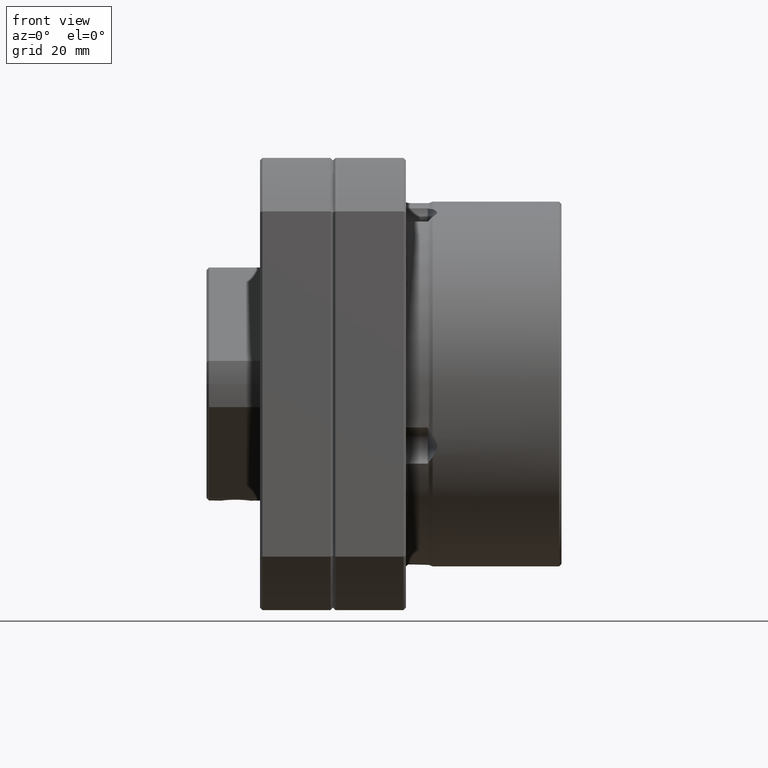
[diagram: clean part render]
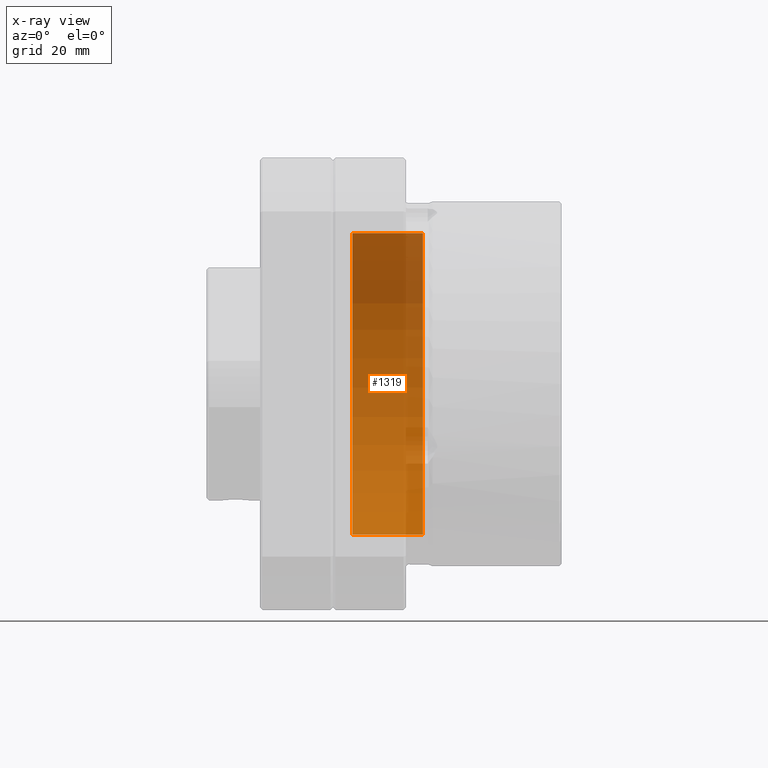
[diagram: x-ray — body ghosted, one internal face saturated and labeled with its STEP entity id]
A machine part, front view, then the same camera in x-ray: the body is ghosted and one INTERNAL B-rep face — a face not visible from any outside direction — is saturated and labeled: STEP entity #1319.
In plain terms, the highlighted cylindrical surface (partial cylindrical patch) has radius 31 mm, axis along (-1, 0, 0).
Its self-contained STEP definition (entity closure, byte-faithful):
#868 = ORIENTED_EDGE ( 'NONE', *, *, #1380, .F. ) ;
#1319 = ADVANCED_FACE ( 'NONE', ( #8444 ), #8443, .T. ) ;
#1320 = EDGE_LOOP ( 'NONE', ( #1321, #1325, #868, #1382 ) ) ;
#1321 = ORIENTED_EDGE ( 'NONE', *, *, #1322, .T. ) ;
#1322 = EDGE_CURVE ( 'NONE', #1323, #1324, #8438, .T. ) ;
#1323 = VERTEX_POINT ( 'NONE', #8433 ) ;
#1324 = VERTEX_POINT ( 'NONE', #8432 ) ;
#1325 = ORIENTED_EDGE ( 'NONE', *, *, #1326, .T. ) ;
#1326 = EDGE_CURVE ( 'NONE', #1324, #1327, #8431, .T. ) ;
#1327 = VERTEX_POINT ( 'NONE', #8427 ) ;
#1380 = EDGE_CURVE ( 'NONE', #1381, #1327, #8570, .T. ) ;
#1381 = VERTEX_POINT ( 'NONE', #8565 ) ;
#1382 = ORIENTED_EDGE ( 'NONE', *, *, #1383, .F. ) ;
#1383 = EDGE_CURVE ( 'NONE', #1323, #1381, #8564, .T. ) ;
#8427 = CARTESIAN_POINT ( 'NONE',  ( 3.999999999999989800, -0.7531374141748713400, -30.99085000504777600 ) ) ;
#8428 = DIRECTION ( 'NONE',  ( -1.000000000000000000, 0.0000000000000000000, 0.0000000000000000000 ) ) ;
#8429 = VECTOR ( 'NONE', #8428, 1000.000000000000000 ) ;
#8430 = CARTESIAN_POINT ( 'NONE',  ( -57.36252019386108700, -0.7531374141748713400, -30.99085000504777900 ) ) ;
#8431 = LINE ( 'NONE', #8430, #8429 ) ;
#8432 = CARTESIAN_POINT ( 'NONE',  ( 18.49999999999999600, -0.7531374141748715700, -30.99085000504778300 ) ) ;
#8433 = CARTESIAN_POINT ( 'NONE',  ( 18.49999999999999600, 0.7531374141748752300, 30.99085000504778300 ) ) ;
#8434 = DIRECTION ( 'NONE',  ( 0.0000000000000000000, 0.02429475529596371300, 0.9997048388725090500 ) ) ;
#8435 = DIRECTION ( 'NONE',  ( -1.000000000000000000, 0.0000000000000000000, 0.0000000000000000000 ) ) ;
#8436 = CARTESIAN_POINT ( 'NONE',  ( 18.49999999999999600, 0.0000000000000000000, 0.0000000000000000000 ) ) ;
#8437 = AXIS2_PLACEMENT_3D ( 'NONE', #8436, #8435, #8434 ) ;
#8438 = CIRCLE ( 'NONE', #8437, 31.00000000000000400 ) ;
#8439 = DIRECTION ( 'NONE',  ( 0.0000000000000000000, 0.02429475529596371700, 0.9997048388725091600 ) ) ;
#8440 = DIRECTION ( 'NONE',  ( -1.000000000000000000, 0.0000000000000000000, 0.0000000000000000000 ) ) ;
#8441 = CARTESIAN_POINT ( 'NONE',  ( -57.36252019386108700, 0.0000000000000000000, 0.0000000000000000000 ) ) ;
#8442 = AXIS2_PLACEMENT_3D ( 'NONE', #8441, #8440, #8439 ) ;
#8443 = CYLINDRICAL_SURFACE ( 'NONE', #8442, 30.99999999999999600 ) ;
#8444 = FACE_OUTER_BOUND ( 'NONE', #1320, .T. ) ;
#8561 = DIRECTION ( 'NONE',  ( -1.000000000000000000, 0.0000000000000000000, 0.0000000000000000000 ) ) ;
#8562 = VECTOR ( 'NONE', #8561, 1000.000000000000000 ) ;
#8563 = CARTESIAN_POINT ( 'NONE',  ( -57.36252019386108700, 0.7531374141748751200, 30.99085000504777900 ) ) ;
#8564 = LINE ( 'NONE', #8563, #8562 ) ;
#8565 = CARTESIAN_POINT ( 'NONE',  ( 3.999999999999989800, 0.7531374141748750100, 30.99085000504777600 ) ) ;
#8566 = DIRECTION ( 'NONE',  ( 0.0000000000000000000, 0.02429475529596371300, 0.9997048388725090500 ) ) ;
#8567 = DIRECTION ( 'NONE',  ( -1.000000000000000000, 0.0000000000000000000, 0.0000000000000000000 ) ) ;
#8568 = CARTESIAN_POINT ( 'NONE',  ( 3.999999999999989800, 0.0000000000000000000, 0.0000000000000000000 ) ) ;
#8569 = AXIS2_PLACEMENT_3D ( 'NONE', #8568, #8567, #8566 ) ;
#8570 = CIRCLE ( 'NONE', #8569, 30.99999999999999600 ) ;